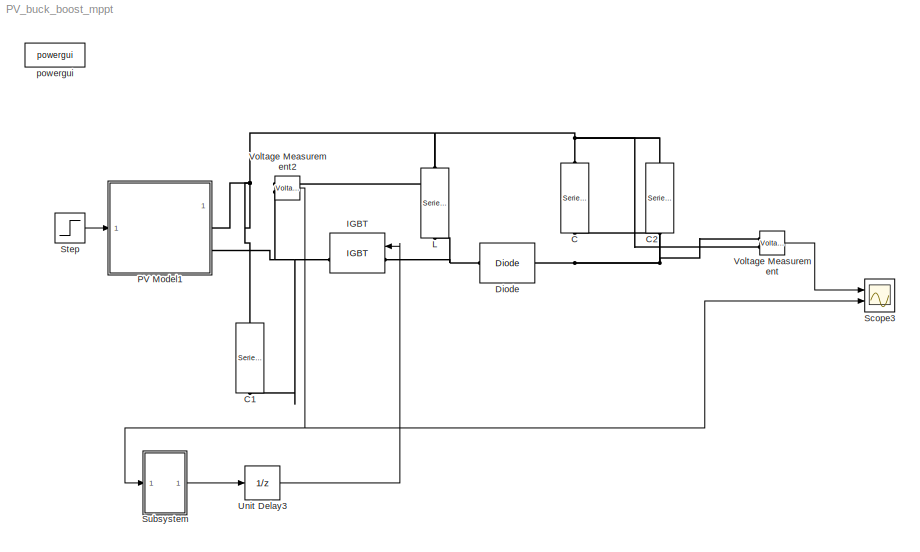
MODEL PV_buck_boost_mppt
KIND model
BLOCK [Reference] C  REF=powerlib/Elements/Series RLC Branch
  BranchType = C
  Capacitance = 2300e-6
  DialogController = POWERSYS.PowerSysDialog
  Inductance = 1e-3
  InitialCurrent = 0
  InitialVoltage = 0
  LConnTagsString = __new0
  LeftPortType = p1
  Measurements = None
  PhysicalDomain = powersysdomain
  Ports = [0, 0, 0, 0, 0, 1, 1]
  RConnTagsString = __new0
  Resistance = 1
  RightPortType = p1
  SetiL0 = off
  Setx0 = off
  SourceBlock = powerlib/Elements/Series RLC Branch
  SourceType = Series RLC Branch
  SubClassName = unknown
BLOCK [Reference] C1  REF=powerlib/Elements/Series RLC Branch
  BranchType = C
  Capacitance = 2300e-6
  DialogController = POWERSYS.PowerSysDialog
  Inductance = 1e-3
  InitialCurrent = 0
  InitialVoltage = 0
  LConnTagsString = __new0
  LeftPortType = p1
  Measurements = None
  PhysicalDomain = powersysdomain
  Ports = [0, 0, 0, 0, 0, 1, 1]
  RConnTagsString = __new0
  Resistance = 1
  RightPortType = p1
  SetiL0 = off
  Setx0 = off
  SourceBlock = powerlib/Elements/Series RLC Branch
  SourceType = Series RLC Branch
  SubClassName = unknown
BLOCK [Reference] C2  REF=powerlib/Elements/Series RLC Branch
  BranchType = R
  Capacitance = 2300e-6
  DialogController = POWERSYS.PowerSysDialog
  Inductance = 1e-3
  InitialCurrent = 0
  InitialVoltage = 0
  LConnTagsString = __new0
  LeftPortType = p1
  Measurements = None
  PhysicalDomain = powersysdomain
  Ports = [0, 0, 0, 0, 0, 1, 1]
  RConnTagsString = __new0
  Resistance = 10
  RightPortType = p1
  SetiL0 = off
  Setx0 = off
  SourceBlock = powerlib/Elements/Series RLC Branch
  SourceType = Series RLC Branch
  SubClassName = unknown
BLOCK [Reference] Diode  REF=powerlib/Power\nElectronics/Diode
  Cs = 250e-9
  DialogController = POWERSYS.PowerSysDialog
  FunctionWithSeparateData = off
  IC = 0
  Lon = 0
  Measurements = off
  Ports = [0, 0, 0, 0, 0, 1, 1]
  RTWMemSecDataConstants = Inherit from model
  RTWMemSecDataInternal = Inherit from model
  RTWMemSecDataParameters = Inherit from model
  RTWMemSecFuncExecute = Inherit from model
  RTWMemSecFuncInitTerm = Inherit from model
  Ron = 0.001
  Rs = 500
  ShowPortLabels = FromPortIcon
  SourceBlock = powerlib/Power\nElectronics/Diode
  SourceType = Diode
  SystemSampleTime = -1
  UseSnubber = off
  Vf = 0.8
BLOCK [Reference] IGBT  REF=powerlib/Power\nElectronics/IGBT
  Cs = inf
  DialogController = POWERSYS.PowerSysDialog
  FunctionWithSeparateData = off
  IC = 0
  Lon = 0
  Measurements = on
  Ports = [1, 1, 0, 0, 0, 1, 1]
  RTWMemSecDataConstants = Inherit from model
  RTWMemSecDataInternal = Inherit from model
  RTWMemSecDataParameters = Inherit from model
  RTWMemSecFuncExecute = Inherit from model
  RTWMemSecFuncInitTerm = Inherit from model
  Ron = 0.001
  Rs = 1e5
  ShowPortLabels = FromPortIcon
  SourceBlock = powerlib/Power\nElectronics/IGBT
  SourceType = IGBT
  SystemSampleTime = -1
  Tf = 1e-6
  Tt = 2e-6
  Vf = 1
BLOCK [Reference] L  REF=powerlib/Elements/Series RLC Branch
  BranchType = L
  Capacitance = 1e-6
  DialogController = POWERSYS.PowerSysDialog
  Inductance = 50e-3
  InitialCurrent = 0
  InitialVoltage = 0
  LConnTagsString = __new0
  LeftPortType = p1
  Measurements = None
  PhysicalDomain = powersysdomain
  Ports = [0, 0, 0, 0, 0, 1, 1]
  RConnTagsString = __new0
  Resistance = 1
  RightPortType = p1
  SetiL0 = off
  Setx0 = off
  SourceBlock = powerlib/Elements/Series RLC Branch
  SourceType = Series RLC Branch
  SubClassName = unknown
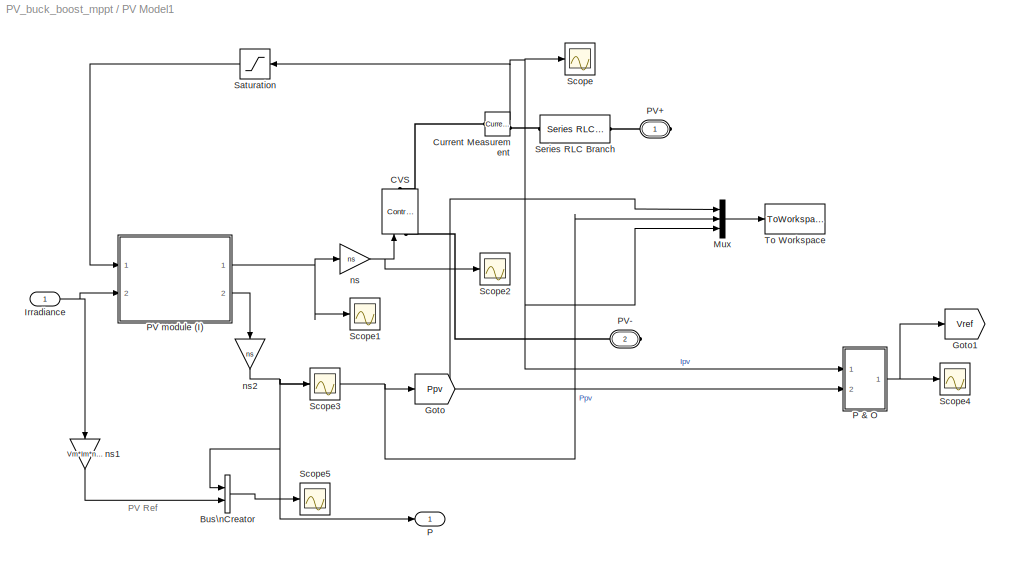
BLOCK [SubSystem] PV Model1
  FunctionWithSeparateData = off
  MaskCallbackString = ||||
  MaskEnableString = on,on,on,on,on
  MaskHideContents = off
  MaskIconFrame = on
  MaskIconOpaque = on
  MaskIconRotate = none
  MaskIconUnits = autoscale
  MaskInitialization = % calculation of PV module parameters\n% limitation: constant temperature\nNs = round(Voc/0.61); % default number of cells in series\nVt = 26e-3; % thermal voltage\nG = Isc/1000; % irradiation to short-circuit current gain\nVmpc = Vm/Ns; % cell voltage at rated Pmax\nVocc = Voc/Ns; % cell open-circuit voltage\nRmpp = Vmpc/Im; % cell load resistance at Pmax\n%\nRp = 100*Vocc/Isc; % initial value fo...<+575ch>
  MaskPromptString = Short-Circuit Current|Open-Circuit Voltage|Current at Pmax|Voltage at Pmax|Number of Modules connected in series
  MaskStyleString = edit,edit,edit,edit,edit
  MaskTabNameString = ,,,,
  MaskToolTipString = on,on,on,on,on
  MaskTunableValueString = on,on,on,on,on
  MaskValueString = 8.79|44.97|8.16|35.30|1
  MaskVarAliasString = ,,,,
  MaskVariables = Isc=@1;Voc=@2;Im=@3;Vm=@4;ns=@5;
  MaskVisibilityString = on,on,on,on,on
  MinAlgLoopOccurrences = off
  Opaque = off
  Ports = [1, 1, 0, 0, 0, 0, 2]
  PropExecContextOutsideSubsystem = off
  RTWSystemCode = Auto
  RequestExecContextInheritance = off
BLOCK [BusCreator] PV Model1/Bus\nCreator
  DisplayOption = bar
  Inputs = 2
  Ports = [2, 1]
BLOCK [Reference] PV Model1/CVS  REF=powerlib/Electrical\nSources/Controlled Voltage Source
  Amplitude = 0
  DialogController = POWERSYS.PowerSysDialog
  Frequency = 0
  FunctionWithSeparateData = off
  Initialize = on
  Measurements = None
  Phase = 0
  Ports = [1, 0, 0, 0, 0, 1, 1]
  RTWMemSecDataConstants = Inherit from model
  RTWMemSecDataInternal = Inherit from model
  RTWMemSecDataParameters = Inherit from model
  RTWMemSecFuncExecute = Inherit from model
  RTWMemSecFuncInitTerm = Inherit from model
  ShowPortLabels = FromPortIcon
  SourceBlock = powerlib/Electrical\nSources/Controlled Voltage Source
  SourceType = Controlled Voltage Source
  Source_Type = DC
  SystemSampleTime = -1
BLOCK [Reference] PV Model1/Current Measurement  REF=powerlib/Measurements/Current Measurement
  DialogController = POWERSYS.PowerSysDialog
  FunctionWithSeparateData = off
  OutputType = Complex
  PSBequivalent = 0
  PhasorSimulation = off
  Ports = [0, 1, 0, 0, 0, 1, 1]
  RTWMemSecDataConstants = Inherit from model
  RTWMemSecDataInternal = Inherit from model
  RTWMemSecDataParameters = Inherit from model
  RTWMemSecFuncExecute = Inherit from model
  RTWMemSecFuncInitTerm = Inherit from model
  ShowPortLabels = FromPortIcon
  SourceBlock = powerlib/Measurements/Current Measurement
  SourceType = Current Measurement
  SystemSampleTime = -1
BLOCK [Goto] PV Model1/Goto
  GotoTag = Ppv
  TagVisibility = global
BLOCK [Goto] PV Model1/Goto1
  GotoTag = Vref
  TagVisibility = global
BLOCK [Inport] PV Model1/Irradiance
  IconDisplay = Port number
  OutDataType = sfix(16)
  OutScaling = 2^0
BLOCK [Mux] PV Model1/Mux
  DisplayOption = bar
  Inputs = 3
  Ports = [3, 1]
BLOCK [Outport] PV Model1/P
  IconDisplay = Port number
  OutDataType = sfix(16)
  OutScaling = 2^0
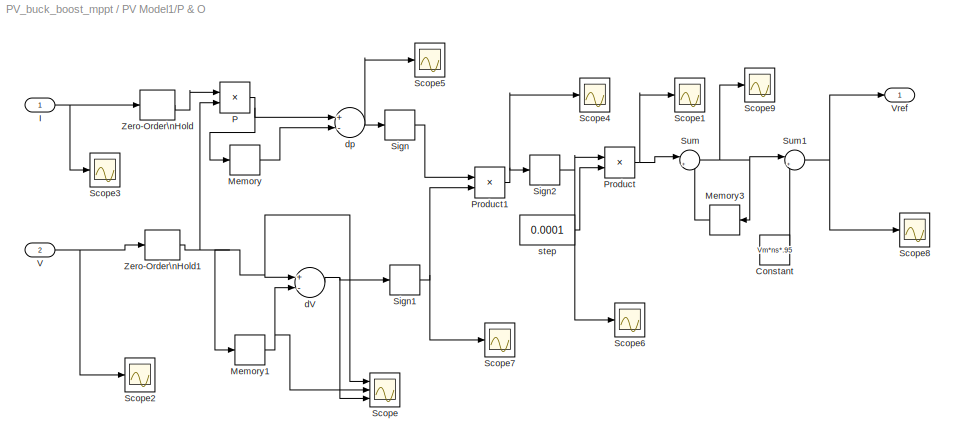
BLOCK [SubSystem] PV Model1/P & O
  FunctionWithSeparateData = off
  MaskHideContents = off
  MinAlgLoopOccurrences = off
  Opaque = off
  Ports = [2, 1]
  PropExecContextOutsideSubsystem = off
  RTWSystemCode = Auto
  RequestExecContextInheritance = off
BLOCK [Constant] PV Model1/P & O/Constant
  OutDataType = sfix(16)
  OutScaling = 2^0
  Value = Vm*ns*.95
BLOCK [Inport] PV Model1/P & O/I
  IconDisplay = Port number
  OutDataType = sfix(16)
  OutScaling = 2^0
BLOCK [Memory] PV Model1/P & O/Memory
  InheritSampleTime = on
BLOCK [Memory] PV Model1/P & O/Memory1
  InheritSampleTime = on
BLOCK [Memory] PV Model1/P & O/Memory3
  InheritSampleTime = on
BLOCK [Product] PV Model1/P & O/P
  InputSameDT = off
  OutDataType = sfix(16)
  OutDataTypeMode = Inherit via internal rule
  OutDataTypeStr = Inherit: Inherit via internal rule
  OutScaling = 2^0
  Ports = [2, 1]
  SaturateOnIntegerOverflow = off
BLOCK [Product] PV Model1/P & O/Product
  InputSameDT = off
  OutDataType = sfix(16)
  OutDataTypeMode = Inherit via internal rule
  OutDataTypeStr = Inherit: Inherit via internal rule
  OutScaling = 2^0
  Ports = [2, 1]
  SaturateOnIntegerOverflow = off
BLOCK [Product] PV Model1/P & O/Product1
  InputSameDT = off
  OutDataType = sfix(16)
  OutDataTypeMode = Inherit via internal rule
  OutDataTypeStr = Inherit: Inherit via internal rule
  OutScaling = 2^0
  Ports = [2, 1]
  SaturateOnIntegerOverflow = off
BLOCK [Scope] PV Model1/P & O/Scope
  DataFormat = StructureWithTime
  Floating = off
  LimitDataPoints = off
  NumInputPorts = 3
  Ports = [3]
  SampleTime = 0
  YMax = 32.2424~32.2424~1.7e-005
  YMin = 29.1717~29.1717~1e-006
  ZoomMode = yonly
BLOCK [Scope] PV Model1/P & O/Scope1
  DataFormat = StructureWithTime
  Floating = off
  LimitDataPoints = off
  NumInputPorts = 1
  Ports = [1]
  SampleTime = 0
  SaveName = ScopeData34
  YMax = 0.0005
  YMin = -0.0005
  ZoomMode = yonly
BLOCK [Scope] PV Model1/P & O/Scope2
  DataFormat = StructureWithTime
  Floating = off
  LimitDataPoints = off
  NumInputPorts = 1
  Ports = [1]
  SampleTime = 0
  SaveName = ScopeData35
  YMax = 10
  YMin = -11
  ZoomMode = yonly
BLOCK [Scope] PV Model1/P & O/Scope3
  DataFormat = StructureWithTime
  Floating = off
  LimitDataPoints = off
  NumInputPorts = 1
  Ports = [1]
  SampleTime = 0
  SaveName = ScopeData36
  YMax = 10
  YMin = -11
  ZoomMode = yonly
BLOCK [Scope] PV Model1/P & O/Scope4
  DataFormat = StructureWithTime
  Floating = off
  LimitDataPoints = off
  NumInputPorts = 1
  Ports = [1]
  SampleTime = 0
  SaveName = ScopeData37
  YMax = 10
  YMin = -11
  ZoomMode = yonly
BLOCK [Scope] PV Model1/P & O/Scope5
  DataFormat = StructureWithTime
  Floating = off
  LimitDataPoints = off
  NumInputPorts = 1
  Ports = [1]
  SampleTime = 0
  SaveName = ScopeData1
  YMax = 10
  YMin = -11
  ZoomMode = yonly
BLOCK [Scope] PV Model1/P & O/Scope6
  DataFormat = StructureWithTime
  Floating = off
  LimitDataPoints = off
  NumInputPorts = 1
  Ports = [1]
  SampleTime = 0
  SaveName = ScopeData38
  YMax = 10
  YMin = -11
  ZoomMode = yonly
BLOCK [Scope] PV Model1/P & O/Scope7
  DataFormat = StructureWithTime
  Floating = off
  LimitDataPoints = off
  NumInputPorts = 1
  Ports = [1]
  SampleTime = 0
  SaveName = ScopeData39
  YMax = 10
  YMin = -11
  ZoomMode = yonly
BLOCK [Scope] PV Model1/P & O/Scope8
  DataFormat = StructureWithTime
  Floating = off
  LimitDataPoints = off
  NumInputPorts = 1
  Ports = [1]
  SampleTime = 0
  SaveName = ScopeData40
  YMax = 658.275
  YMin = 657.75
  ZoomMode = yonly
BLOCK [Scope] PV Model1/P & O/Scope9
  DataFormat = StructureWithTime
  Floating = off
  LimitDataPoints = off
  NumInputPorts = 1
  Ports = [1]
  SampleTime = 0
  SaveName = ScopeData41
  YMax = 2.5
  YMin = -7.5
  ZoomMode = yonly
BLOCK [Signum] PV Model1/P & O/Sign
BLOCK [Signum] PV Model1/P & O/Sign1
BLOCK [Signum] PV Model1/P & O/Sign2
BLOCK [Sum] PV Model1/P & O/Sum
  IconShape = round
  InputSameDT = off
  Inputs = |++
  OutDataType = sfix(16)
  OutDataTypeMode = Inherit via internal rule
  OutDataTypeStr = Inherit: Inherit via internal rule
  OutScaling = 2^0
  Ports = [2, 1]
  SaturateOnIntegerOverflow = off
BLOCK [Sum] PV Model1/P & O/Sum1
  IconShape = round
  InputSameDT = off
  Inputs = |++
  OutDataType = sfix(16)
  OutDataTypeMode = Inherit via internal rule
  OutDataTypeStr = Inherit: Inherit via internal rule
  OutScaling = 2^0
  Ports = [2, 1]
  SaturateOnIntegerOverflow = off
BLOCK [Inport] PV Model1/P & O/V
  IconDisplay = Port number
  OutDataType = sfix(16)
  OutScaling = 2^0
  Port = 2
BLOCK [Outport] PV Model1/P & O/Vref
  IconDisplay = Port number
  OutDataType = sfix(16)
  OutScaling = 2^0
BLOCK [ZeroOrderHold] PV Model1/P & O/Zero-Order\nHold
  SampleTime = 0.0002
BLOCK [ZeroOrderHold] PV Model1/P & O/Zero-Order\nHold1
  SampleTime = 0.0002
BLOCK [Sum] PV Model1/P & O/dV
  InputSameDT = off
  Inputs = +-
  OutDataType = sfix(16)
  OutDataTypeMode = Inherit via internal rule
  OutDataTypeStr = Inherit: Inherit via internal rule
  OutScaling = 2^-10
  Ports = [2, 1]
  SaturateOnIntegerOverflow = off
BLOCK [Sum] PV Model1/P & O/dp
  InputSameDT = off
  Inputs = +-
  OutDataType = sfix(16)
  OutDataTypeMode = Inherit via internal rule
  OutDataTypeStr = Inherit: Inherit via internal rule
  OutScaling = 2^-10
  Ports = [2, 1]
  SaturateOnIntegerOverflow = off
BLOCK [Constant] PV Model1/P & O/step
  OutDataType = sfix(16)
  OutScaling = 2^0
  Value = 0.0001
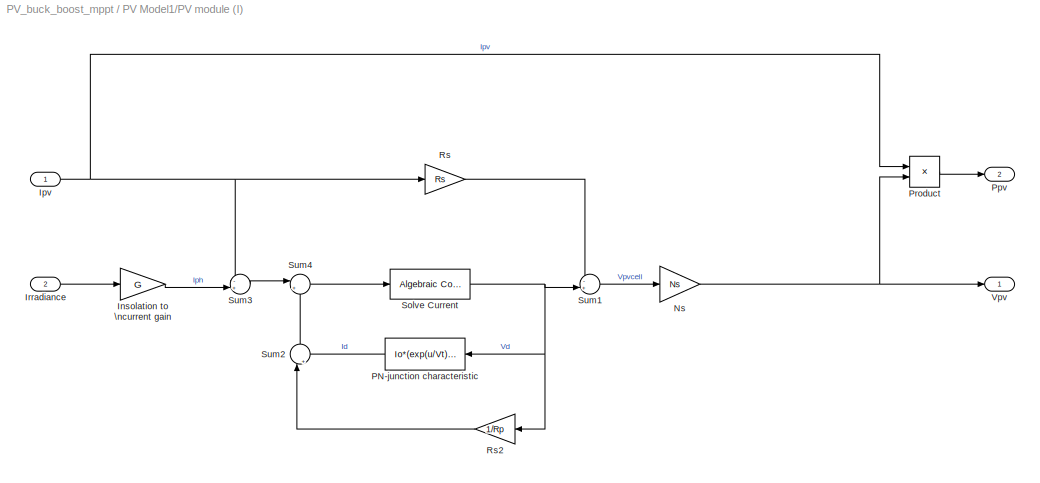
BLOCK [SubSystem] PV Model1/PV module (I)
  FunctionWithSeparateData = off
  MaskHideContents = off
  MinAlgLoopOccurrences = off
  Opaque = off
  Ports = [2, 2]
  PropExecContextOutsideSubsystem = off
  RTWSystemCode = Auto
  RequestExecContextInheritance = off
BLOCK [Gain] PV Model1/PV module (I)/Insolation to \ncurrent gain
  Gain = G
  OutDataType = sfix(16)
  OutDataTypeMode = Inherit via internal rule
  OutDataTypeStr = Inherit: Inherit via internal rule
  OutScaling = 2^0
  ParamDataTypeStr = Inherit: Inherit via internal rule
  ParameterDataType = sfix(16)
  ParameterDataTypeMode = Inherit via internal rule
  ParameterScaling = 2^0
  SaturateOnIntegerOverflow = off
BLOCK [Inport] PV Model1/PV module (I)/Ipv
  IconDisplay = Port number
  OutDataType = sfix(16)
  OutScaling = 2^0
BLOCK [Inport] PV Model1/PV module (I)/Irradiance
  IconDisplay = Port number
  OutDataType = sfix(16)
  OutScaling = 2^0
  Port = 2
BLOCK [Gain] PV Model1/PV module (I)/Ns
  Gain = Ns
  OutDataType = sfix(16)
  OutDataTypeMode = Inherit via internal rule
  OutDataTypeStr = Inherit: Inherit via internal rule
  OutScaling = 2^0
  ParamDataTypeStr = Inherit: Inherit via internal rule
  ParameterDataType = sfix(16)
  ParameterDataTypeMode = Inherit via internal rule
  ParameterScaling = 2^0
  SaturateOnIntegerOverflow = off
BLOCK [Fcn] PV Model1/PV module (I)/PN-junction characteristic
  Expr = Io*(exp(u/Vt)-1)
BLOCK [Outport] PV Model1/PV module (I)/Ppv
  IconDisplay = Port number
  OutDataType = sfix(16)
  OutScaling = 2^0
  Port = 2
BLOCK [Product] PV Model1/PV module (I)/Product
  InputSameDT = off
  OutDataType = sfix(16)
  OutDataTypeMode = Inherit via internal rule
  OutDataTypeStr = Inherit: Inherit via internal rule
  OutScaling = 2^0
  Ports = [2, 1]
  SaturateOnIntegerOverflow = off
BLOCK [Gain] PV Model1/PV module (I)/Rs
  Gain = Rs
  OutDataType = sfix(16)
  OutDataTypeMode = Inherit via internal rule
  OutDataTypeStr = Inherit: Inherit via internal rule
  OutScaling = 2^0
  ParamDataTypeStr = Inherit: Inherit via internal rule
  ParameterDataType = sfix(16)
  ParameterDataTypeMode = Inherit via internal rule
  ParameterScaling = 2^0
  SaturateOnIntegerOverflow = off
BLOCK [Gain] PV Model1/PV module (I)/Rs2
  Gain = 1/Rp
  OutDataType = sfix(16)
  OutDataTypeMode = Inherit via internal rule
  OutDataTypeStr = Inherit: Inherit via internal rule
  OutScaling = 2^0
  ParamDataTypeStr = Inherit: Inherit via internal rule
  ParameterDataType = sfix(16)
  ParameterDataTypeMode = Inherit via internal rule
  ParameterScaling = 2^0
  SaturateOnIntegerOverflow = off
BLOCK [Reference] PV Model1/PV module (I)/Solve Current  REF=simulink/Math\nOperations/Algebraic Constraint
  FunctionWithSeparateData = off
  Ports = [1, 1]
  RTWMemSecDataConstants = Inherit from model
  RTWMemSecDataInternal = Inherit from model
  RTWMemSecDataParameters = Inherit from model
  RTWMemSecFuncExecute = Inherit from model
  RTWMemSecFuncInitTerm = Inherit from model
  ShowPortLabels = FromPortIcon
  SourceBlock = simulink/Math\nOperations/Algebraic Constraint
  SourceType = Algebraic Constraint
  SystemSampleTime = -1
  z0 = 1.99
BLOCK [Sum] PV Model1/PV module (I)/Sum1
  IconShape = round
  InputSameDT = off
  Inputs = -+|
  OutDataType = sfix(16)
  OutDataTypeMode = Inherit via internal rule
  OutDataTypeStr = Inherit: Inherit via internal rule
  OutScaling = 2^0
  Ports = [2, 1]
  SaturateOnIntegerOverflow = off
BLOCK [Sum] PV Model1/PV module (I)/Sum2
  IconShape = round
  InputSameDT = off
  Inputs = |++
  OutDataType = sfix(16)
  OutDataTypeMode = Inherit via internal rule
  OutDataTypeStr = Inherit: Inherit via internal rule
  OutScaling = 2^0
  Ports = [2, 1]
  SaturateOnIntegerOverflow = off
BLOCK [Sum] PV Model1/PV module (I)/Sum3
  IconShape = round
  InputSameDT = off
  Inputs = -+|
  OutDataType = sfix(16)
  OutDataTypeMode = Inherit via internal rule
  OutDataTypeStr = Inherit: Inherit via internal rule
  OutScaling = 2^0
  Ports = [2, 1]
  SaturateOnIntegerOverflow = off
BLOCK [Sum] PV Model1/PV module (I)/Sum4
  IconShape = round
  InputSameDT = off
  Inputs = |+-
  OutDataType = sfix(16)
  OutDataTypeMode = Inherit via internal rule
  OutDataTypeStr = Inherit: Inherit via internal rule
  OutScaling = 2^0
  Ports = [2, 1]
  SaturateOnIntegerOverflow = off
BLOCK [Outport] PV Model1/PV module (I)/Vpv
  IconDisplay = Port number
  OutDataType = sfix(16)
  OutScaling = 2^0
BLOCK [PMIOPort] PV Model1/PV+
  Port = 1
  Side = Right
  Tag = PMCPort
BLOCK [PMIOPort] PV Model1/PV-
  Port = 2
  Side = Right
  Tag = PMCPort
BLOCK [Saturate] PV Model1/Saturation
  LowerLimit = 0
  UpperLimit = inf
BLOCK [Scope] PV Model1/Scope
  DataFormat = StructureWithTime
  Floating = off
  LimitDataPoints = off
  NumInputPorts = 1
  Ports = [1]
  SampleTime = 0
  SaveName = ScopeData1
  YMax = -0.00726198
  YMin = -0.00726198
BLOCK [Scope] PV Model1/Scope1
  DataFormat = StructureWithTime
  Floating = off
  NumInputPorts = 1
  Ports = [1]
  SampleTime = 0
  SaveName = ScopeData2
BLOCK [Scope] PV Model1/Scope2
  DataFormat = StructureWithTime
  Floating = off
  LimitDataPoints = off
  NumInputPorts = 1
  Ports = [1]
  SampleTime = 0
  SaveName = ScopeData3
  YMax = 809.5
  YMin = 805
BLOCK [Scope] PV Model1/Scope3
  DataFormat = StructureWithTime
  Floating = off
  LimitDataPoints = off
  NumInputPorts = 1
  Ports = [1]
  SampleTime = 0
  SaveName = ScopeData4
  YMax = 288.05
  YMin = 287.7
BLOCK [Scope] PV Model1/Scope4
  DataFormat = StructureWithTime
  Floating = off
  LimitDataPoints = off
  NumInputPorts = 1
  Ports = [1]
  SampleTime = 0
  SaveName = ScopeData28
  YMax = 35.2655
  YMin = 35.258
BLOCK [Scope] PV Model1/Scope5
  DataFormat = StructureWithTime
  Floating = off
  LimitDataPoints = off
  NumInputPorts = 1
  Ports = [1]
  SampleTime = 0
  SaveName = ScopeData42
  YMax = 290
  YMin = 257.5
BLOCK [Reference] PV Model1/Series RLC Branch  REF=powerlib/Elements/Series RLC Branch
  BranchType = R
  Capacitance = 1e-6
  DialogController = POWERSYS.PowerSysDialog
  Inductance = 1e-3
  InitialCurrent = 0
  InitialVoltage = 0
  LConnTagsString = __new0
  LeftPortType = p1
  Measurements = None
  PhysicalDomain = powersysdomain
  Ports = [0, 0, 0, 0, 0, 1, 1]
  RConnTagsString = __new0
  Resistance = 0.00001
  RightPortType = p1
  SetiL0 = off
  Setx0 = off
  SourceBlock = powerlib/Elements/Series RLC Branch
  SourceType = Series RLC Branch
  SubClassName = unknown
BLOCK [ToWorkspace] PV Model1/To Workspace
  MaxDataPoints = inf
  SampleTime = -1
  SaveFormat = Structure With Time
  VariableName = PV
BLOCK [Gain] PV Model1/ns
  Gain = ns
  OutDataType = sfix(16)
  OutDataTypeMode = Inherit via internal rule
  OutDataTypeStr = Inherit: Inherit via internal rule
  OutScaling = 2^0
  ParamDataTypeStr = Inherit: Inherit via internal rule
  ParameterDataType = sfix(16)
  ParameterDataTypeMode = Inherit via internal rule
  ParameterScaling = 2^0
  SaturateOnIntegerOverflow = off
BLOCK [Gain] PV Model1/ns1
  Gain = Vm*Im*ns/1000
  OutDataType = sfix(16)
  OutDataTypeMode = Inherit via internal rule
  OutDataTypeStr = Inherit: Inherit via internal rule
  OutScaling = 2^0
  ParamDataTypeStr = Inherit: Inherit via internal rule
  ParameterDataType = sfix(16)
  ParameterDataTypeMode = Inherit via internal rule
  ParameterScaling = 2^0
  SaturateOnIntegerOverflow = off
BLOCK [Gain] PV Model1/ns2
  Gain = ns
  OutDataType = sfix(16)
  OutDataTypeMode = Inherit via internal rule
  OutDataTypeStr = Inherit: Inherit via internal rule
  OutScaling = 2^0
  ParamDataTypeStr = Inherit: Inherit via internal rule
  ParameterDataType = sfix(16)
  ParameterDataTypeMode = Inherit via internal rule
  ParameterScaling = 2^0
  SaturateOnIntegerOverflow = off
BLOCK [Scope] Scope3
  DataFormat = StructureWithTime
  Floating = off
  LimitDataPoints = off
  NumInputPorts = 2
  Ports = [2]
  SampleInput = on
  SaveName = ScopeData7
  TimeRange = 0.04
  YMax = 49.95~35.8
  YMin = 49.3~35.2
BLOCK [Step] Step
  After = 900
  Before = 1000
  SampleTime = 5e-5
  Time = 2
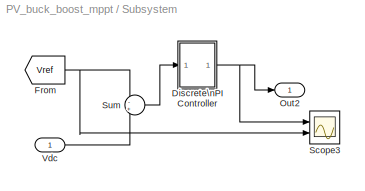
BLOCK [SubSystem] Subsystem
  FunctionWithSeparateData = off
  MaskHideContents = off
  MinAlgLoopOccurrences = off
  Opaque = off
  Ports = [1, 1]
  PropExecContextOutsideSubsystem = off
  RTWSystemCode = Auto
  RequestExecContextInheritance = off
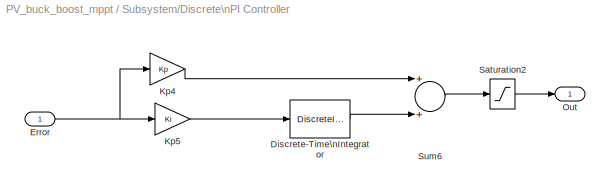
BLOCK [SubSystem] Subsystem/Discrete\nPI Controller
  AncestorBlock = powerlib_extras/Discrete \nControl Blocks/Discrete\nPI Controller
  DialogController = POWERSYS.PowerSysDialog
  FunctionWithSeparateData = off
  MaskCallbackString = ||||
  MaskDescription = This block implements a discrete PI controller.
  MaskDisplay = disp('PI');
  MaskEnableString = on,on,on,on,on
  MaskHelp = This block is part of a subset of blocks in the Extras library that does not have documentation associated with it, other than the block mask description.
  MaskHideContents = off
  MaskIconFrame = on
  MaskIconOpaque = on
  MaskIconRotate = none
  MaskIconUnits = autoscale
  MaskInitialization = UpperLimit=Par_Limits(1);\nLowerLimit=Par_Limits(2);\npower_initmask();
  MaskPromptString = Proportional gain (Kp):|Integral gain (Ki):|Output limits: [ Upper   Lower ]|Output initial value:|Sample time:
  MaskSelfModifiable = on
  MaskStyleString = edit,edit,edit,edit,edit
  MaskTabNameString = ,,,,
  MaskToolTipString = on,on,on,on,on
  MaskTunableValueString = on,on,on,on,on
  MaskType = Discrete PI Controller
  MaskValueString = 1|85|[1 0]|0|20e-6
  MaskVarAliasString = ,,,,
  MaskVariables = Kp=@1;Ki=@2;Par_Limits=@3;Init=@4;Ts=@5;
  MaskVisibilityString = on,on,on,on,on
  MinAlgLoopOccurrences = off
  Opaque = off
  Ports = [1, 1]
  PropExecContextOutsideSubsystem = off
  RTWSystemCode = Auto
  RequestExecContextInheritance = off
BLOCK [DiscreteIntegrator] Subsystem/Discrete\nPI Controller/Discrete-Time\nIntegrator
  ExternalReset = none
  ICPrevOutput = DiscIntNeverNeededParam
  ICPrevScaledInput = DiscIntNeverNeededParam
  InitialCondition = Init
  InitialConditionSource = internal
  IntegratorMethod = Integration: Forward Euler
  LimitOutput = on
  LowerSaturationLimit = LowerLimit
  OutDataType = sfix(16)
  OutScaling = 2^0
  Ports = [1, 1]
  SampleTime = Ts
  UpperSaturationLimit = UpperLimit
BLOCK [Inport] Subsystem/Discrete\nPI Controller/Error
  IconDisplay = Port number
  OutDataType = sfix(16)
  OutScaling = 2^0
BLOCK [Gain] Subsystem/Discrete\nPI Controller/Kp4
  Gain = Kp
  OutDataType = sfix(16)
  OutScaling = 2^0
  ParameterDataType = sfix(16)
  ParameterScaling = 2^0
BLOCK [Gain] Subsystem/Discrete\nPI Controller/Kp5
  Gain = Ki
  OutDataType = sfix(16)
  OutScaling = 2^0
  ParameterDataType = sfix(16)
  ParameterScaling = 2^0
BLOCK [Outport] Subsystem/Discrete\nPI Controller/Out
  IconDisplay = Port number
  InitialOutput = 0
  OutDataType = sfix(16)
  OutScaling = 2^0
BLOCK [Saturate] Subsystem/Discrete\nPI Controller/Saturation2
  LowerLimit = LowerLimit
  UpperLimit = UpperLimit
BLOCK [Sum] Subsystem/Discrete\nPI Controller/Sum6
  OutDataType = sfix(16)
  OutScaling = 2^0
  Ports = [2, 1]
BLOCK [From] Subsystem/From
  CloseFcn = tagdialog Close
  GotoTag = Vref
  TagVisibility = global
BLOCK [Outport] Subsystem/Out2
  IconDisplay = Port number
BLOCK [Scope] Subsystem/Scope3
  DataFormat = StructureWithTime
  Floating = off
  LimitDataPoints = off
  NumInputPorts = 2
  Ports = [2]
  SampleInput = on
  SaveName = ScopeData5
  TimeRange = 0.04
  YMax = 1~35.2655
  YMin = 0.75~35.258
BLOCK [Sum] Subsystem/Sum
  IconShape = round
  Inputs = -+
  OutDataType = sfix(16)
  OutScaling = 2^0
  Ports = [2, 1]
BLOCK [Inport] Subsystem/Vdc
  IconDisplay = Port number
  OutDataType = sfix(16)
  OutScaling = 2^0
BLOCK [UnitDelay] Unit Delay3
  SampleTime = -1
BLOCK [Reference] Voltage Measurement  REF=powerlib/Measurements/Voltage Measurement
  DialogController = POWERSYS.PowerSysDialog
  FunctionWithSeparateData = off
  OutputType = Complex
  PSBequivalent = 0
  PhasorSimulation = off
  Ports = [0, 1, 0, 0, 0, 2]
  RTWMemSecDataConstants = Inherit from model
  RTWMemSecDataInternal = Inherit from model
  RTWMemSecDataParameters = Inherit from model
  RTWMemSecFuncExecute = Inherit from model
  RTWMemSecFuncInitTerm = Inherit from model
  ShowPortLabels = FromPortIcon
  SourceBlock = powerlib/Measurements/Voltage Measurement
  SourceType = Voltage Measurement
  SystemSampleTime = -1
BLOCK [Reference] Voltage Measurement2  REF=powerlib/Measurements/Voltage Measurement
  DialogController = POWERSYS.PowerSysDialog
  FunctionWithSeparateData = off
  OutputType = Complex
  PSBequivalent = 0
  PhasorSimulation = off
  Ports = [0, 1, 0, 0, 0, 2]
  RTWMemSecDataConstants = Inherit from model
  RTWMemSecDataInternal = Inherit from model
  RTWMemSecDataParameters = Inherit from model
  RTWMemSecFuncExecute = Inherit from model
  RTWMemSecFuncInitTerm = Inherit from model
  ShowPortLabels = FromPortIcon
  SourceBlock = powerlib/Measurements/Voltage Measurement
  SourceType = Voltage Measurement
  SystemSampleTime = -1
BLOCK [Reference] powergui  REF=powerlib/powergui
  DisplayStyle = 1
  EnableUseOfTLC = off
  Frange = [0:2:500]
  FreqAxis = off
  FunctionMessages = off
  FunctionWithSeparateData = off
  HookPort = off
  Interpol = off
  MaxFrequency = 1000
  Ports = []
  RTWMemSecDataConstants = Inherit from model
  RTWMemSecDataInternal = Inherit from model
  RTWMemSecDataParameters = Inherit from model
  RTWMemSecFuncExecute = Inherit from model
  RTWMemSecFuncInitTerm = Inherit from model
  RestoreLinks = warning
  RmsSteady = 1
  SPID = off
  SampleTime = 50e-6
  ShowGrid = off
  ShowPortLabels = FromPortIcon
  SourceBlock = powerlib/powergui
  SourceType = PSB option menu block
  StartTime = 0.0
  SwTol = 0
  SystemSampleTime = -1
  Ts = 0
  UserData = DataTag0
  UserDataPersistent = on
  Xlog = on
  Ylog = off
  ZoomFFT = on
  cycles = 1
  display = off
  echomessages = off
  frequency = 60
  frequencyindice = 0
  frequencyindicesteady = 1
  fundamental = 60
  methode = off
  save = off
  variable = ZData
  x0status = blocks
ANNOTATION PV Model1: PV Ref
LINE PV Model1/Bus\nCreator:1 -> PV Model1/Scope5:1
NET PV Model1/Current Measurement:1 -> PV Model1/Mux:3, PV Model1/P & O:1, PV Model1/Saturation:1, PV Model1/Scope:1
NET PV Model1/Irradiance:1 -> PV Model1/PV module (I):2, PV Model1/ns1:1
LINE PV Model1/Mux:1 -> PV Model1/To Workspace:1
LINE PV Model1/P & O/Constant:1 -> PV Model1/P & O/Sum1:2
NET PV Model1/P & O/I:1 -> PV Model1/P & O/Scope3:1, PV Model1/P & O/Zero-Order\nHold:1
NET PV Model1/P & O/Memory1:1 -> PV Model1/P & O/Scope:2, PV Model1/P & O/dV:2
LINE PV Model1/P & O/Memory3:1 -> PV Model1/P & O/Sum:2
LINE PV Model1/P & O/Memory:1 -> PV Model1/P & O/dp:2
NET PV Model1/P & O/P:1 -> PV Model1/P & O/Memory:1, PV Model1/P & O/dp:1
NET PV Model1/P & O/Product1:1 -> PV Model1/P & O/Scope4:1, PV Model1/P & O/Sign2:1
NET PV Model1/P & O/Product:1 -> PV Model1/P & O/Scope1:1, PV Model1/P & O/Sum:1
NET PV Model1/P & O/Sign1:1 -> PV Model1/P & O/Product1:2, PV Model1/P & O/Scope7:1
NET PV Model1/P & O/Sign2:1 -> PV Model1/P & O/Product:1, PV Model1/P & O/Scope6:1
LINE PV Model1/P & O/Sign:1 -> PV Model1/P & O/Product1:1
NET PV Model1/P & O/Sum1:1 -> PV Model1/P & O/Scope8:1, PV Model1/P & O/Vref:1
NET PV Model1/P & O/Sum:1 -> PV Model1/P & O/Memory3:1, PV Model1/P & O/Scope9:1, PV Model1/P & O/Sum1:1
NET PV Model1/P & O/V:1 -> PV Model1/P & O/Scope2:1, PV Model1/P & O/Zero-Order\nHold1:1
NET PV Model1/P & O/Zero-Order\nHold1:1 -> PV Model1/P & O/Memory1:1, PV Model1/P & O/P:2, PV Model1/P & O/Scope:1, PV Model1/P & O/dV:1
LINE PV Model1/P & O/Zero-Order\nHold:1 -> PV Model1/P & O/P:1
NET PV Model1/P & O/dV:1 -> PV Model1/P & O/Scope:3, PV Model1/P & O/Sign1:1
NET PV Model1/P & O/dp:1 -> PV Model1/P & O/Scope5:1, PV Model1/P & O/Sign:1
LINE PV Model1/P & O/step:1 -> PV Model1/P & O/Product:2
NET PV Model1/P & O:1 -> PV Model1/Goto1:1, PV Model1/Scope4:1
LINE PV Model1/PV module (I)/Insolation to \ncurrent gain:1 -> PV Model1/PV module (I)/Sum3:2
NET PV Model1/PV module (I)/Ipv:1 -> PV Model1/PV module (I)/Product:1, PV Model1/PV module (I)/Rs:1, PV Model1/PV module (I)/Sum3:1
LINE PV Model1/PV module (I)/Irradiance:1 -> PV Model1/PV module (I)/Insolation to \ncurrent gain:1
NET PV Model1/PV module (I)/Ns:1 -> PV Model1/PV module (I)/Product:2, PV Model1/PV module (I)/Vpv:1
LINE PV Model1/PV module (I)/PN-junction characteristic:1 -> PV Model1/PV module (I)/Sum2:2
LINE PV Model1/PV module (I)/Product:1 -> PV Model1/PV module (I)/Ppv:1
LINE PV Model1/PV module (I)/Rs2:1 -> PV Model1/PV module (I)/Sum2:1
LINE PV Model1/PV module (I)/Rs:1 -> PV Model1/PV module (I)/Sum1:1
NET PV Model1/PV module (I)/Solve Current:1 -> PV Model1/PV module (I)/PN-junction characteristic:1, PV Model1/PV module (I)/Rs2:1, PV Model1/PV module (I)/Sum1:2
LINE PV Model1/PV module (I)/Sum1:1 -> PV Model1/PV module (I)/Ns:1
LINE PV Model1/PV module (I)/Sum2:1 -> PV Model1/PV module (I)/Sum4:2
LINE PV Model1/PV module (I)/Sum3:1 -> PV Model1/PV module (I)/Sum4:1
LINE PV Model1/PV module (I)/Sum4:1 -> PV Model1/PV module (I)/Solve Current:1
NET PV Model1/PV module (I):1 -> PV Model1/Scope1:1, PV Model1/ns:1
LINE PV Model1/PV module (I):2 -> PV Model1/ns2:1
LINE PV Model1/Saturation:1 -> PV Model1/PV module (I):1
LINE PV Model1/ns1:1 -> PV Model1/Bus\nCreator:2
NET PV Model1/ns2:1 -> PV Model1/Bus\nCreator:1, PV Model1/Goto:1, PV Model1/Mux:2, PV Model1/P:1, PV Model1/Scope3:1
NET PV Model1/ns:1 -> PV Model1/CVS:1, PV Model1/Mux:1, PV Model1/P & O:2, PV Model1/Scope2:1
LINE Step:1 -> PV Model1:1
LINE Subsystem/Discrete\nPI Controller/Discrete-Time\nIntegrator:1 -> Subsystem/Discrete\nPI Controller/Sum6:2
NET Subsystem/Discrete\nPI Controller/Error:1 -> Subsystem/Discrete\nPI Controller/Kp4:1, Subsystem/Discrete\nPI Controller/Kp5:1
LINE Subsystem/Discrete\nPI Controller/Kp4:1 -> Subsystem/Discrete\nPI Controller/Sum6:1
LINE Subsystem/Discrete\nPI Controller/Kp5:1 -> Subsystem/Discrete\nPI Controller/Discrete-Time\nIntegrator:1
LINE Subsystem/Discrete\nPI Controller/Saturation2:1 -> Subsystem/Discrete\nPI Controller/Out:1
LINE Subsystem/Discrete\nPI Controller/Sum6:1 -> Subsystem/Discrete\nPI Controller/Saturation2:1
NET Subsystem/Discrete\nPI Controller:1 -> Subsystem/Out2:1, Subsystem/Scope3:1
NET Subsystem/From:1 -> Subsystem/Scope3:2, Subsystem/Sum:1
LINE Subsystem/Sum:1 -> Subsystem/Discrete\nPI Controller:1
LINE Subsystem/Vdc:1 -> Subsystem/Sum:2
LINE Subsystem:1 -> Unit Delay3:1
LINE Unit Delay3:1 -> IGBT:1
NET Voltage Measurement2:1 -> Scope3:2, Subsystem:1
LINE Voltage Measurement:1 -> Scope3:1
PNET net1: C1:LConn1 -- IGBT:RConn1 -- PV Model1:RConn2 -- Voltage Measurement2:LConn2
PNET net2: C1:RConn1 -- C2:RConn1 -- C:RConn1 -- L:RConn1 -- PV Model1:RConn1 -- Voltage Measurement2:LConn1 -- Voltage Measurement:LConn2
PNET net3: C2:LConn1 -- C:LConn1 -- Diode:RConn1 -- Voltage Measurement:LConn1
PNET net4: Diode:LConn1 -- IGBT:LConn1 -- L:LConn1
PLINE PV Model1/CVS:LConn1 -- PV Model1/PV-:RConn1
PLINE PV Model1/CVS:RConn1 -- PV Model1/Current Measurement:LConn1
PLINE PV Model1/Current Measurement:RConn1 -- PV Model1/Series RLC Branch:LConn1
PLINE PV Model1/PV+:RConn1 -- PV Model1/Series RLC Branch:RConn1
note: NET lines group one-source signal fan-out (src -> all destinations, sorted); 1:1 wires keep LINE; PNET lines group multi-terminal physical nets as a canonical sorted terminal list (undirected conserving connections); 2-terminal nets keep the pairwise PLINE form
